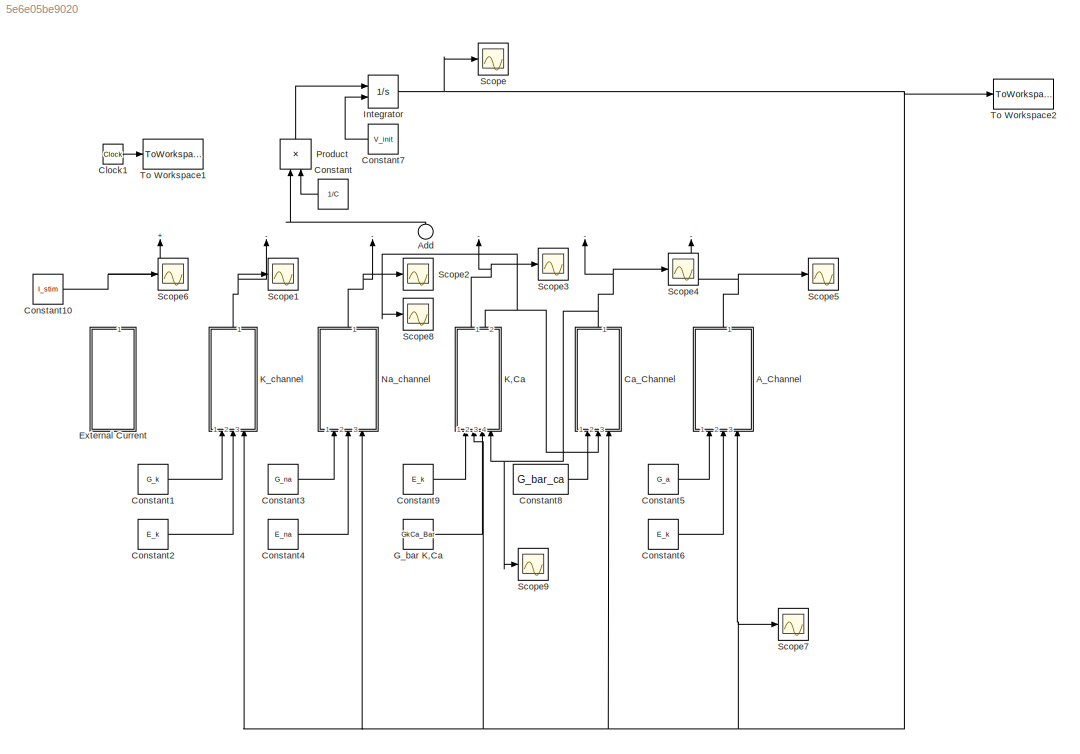
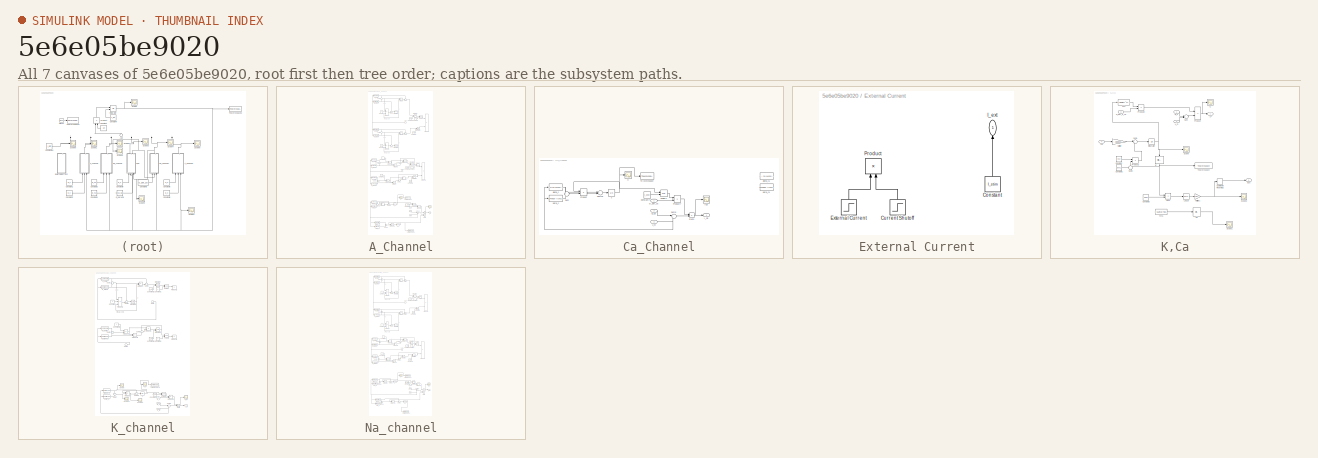
[diagram: thumbnail index - all 7 canvases of the model, root first then tree order]
MODEL slx_5e6e05be9020
KIND model
CONFIG AbsTol = auto
CONFIG EnableMultiTasking = off
CONFIG FixedStep = auto
CONFIG MaxStep = auto
CONFIG MinStep = auto
CONFIG RelTol = 1e-3
CONFIG SampleTimeConstraint = Unconstrained
CONFIG Solver = VariableStepAuto
CONFIG SolverName = VariableStepAuto
CONFIG StartTime = 0.0
CONFIG StopTime = 1000
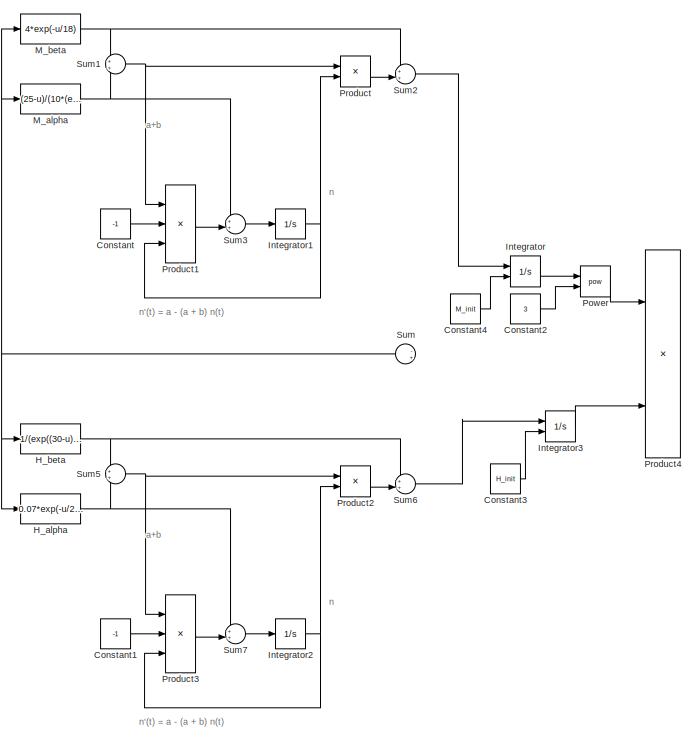
[diagram: A_Channel - part 1/2, full width, top band]
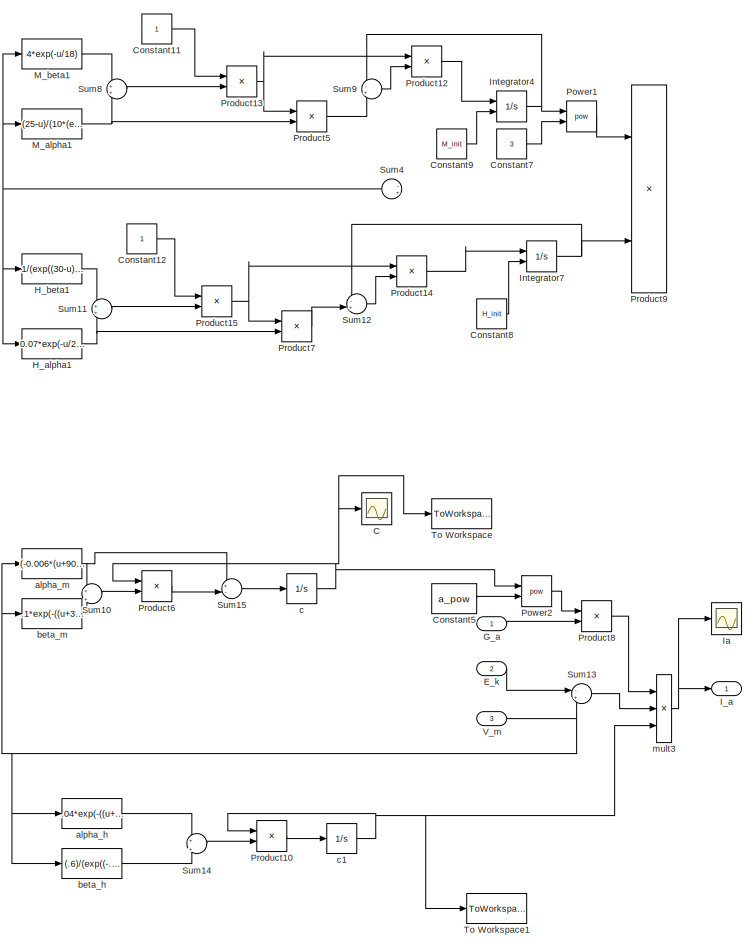
[diagram: A_Channel - part 2/2, full width, bottom band]
BLOCK [SubSystem] A_Channel
  Ports = [3, 1]
  RequestExecContextInheritance = off
BLOCK [Scope] A_Channel/C
  Floating = off
  NumInputPorts = 1
  Ports = [1]
  ScopeSpecificationString = Simulink.scopes.TimeScopeBlockCfg('CurrentConfiguration', extmgr.ConfigurationSet(extmgr.Configuration('Core','General UI',true),extmgr.Configuration('Core','Source UI',true),extmgr.Configuration('Sources','WiredSimulink',true),extmgr.Configuration('Visuals','Time Domain',true,'SerializedDisplays',{struct('MinYLimReal','0.23899','MaxYLimReal','1.02607','YLabelReal','','MinYLimMag','0.23899','MaxYL...<+1692ch>
BLOCK [Constant] A_Channel/Constant
  Commented = on
  Value = -1
BLOCK [Constant] A_Channel/Constant1
  Commented = on
  Value = -1
BLOCK [Constant] A_Channel/Constant11
  Commented = on
BLOCK [Constant] A_Channel/Constant12
  Commented = on
BLOCK [Constant] A_Channel/Constant2
  Commented = on
  Value = 3
BLOCK [Constant] A_Channel/Constant3
  Commented = on
  Value = H_init
BLOCK [Constant] A_Channel/Constant4
  Commented = on
  Value = M_init
BLOCK [Constant] A_Channel/Constant5
  Value = a_pow
BLOCK [Constant] A_Channel/Constant7
  Commented = on
  Value = 3
BLOCK [Constant] A_Channel/Constant8
  Commented = on
  Value = H_init
BLOCK [Constant] A_Channel/Constant9
  Commented = on
  Value = M_init
BLOCK [Inport] A_Channel/E_k
  IconDisplay = Port number
  Port = 2
BLOCK [Inport] A_Channel/G_a
  IconDisplay = Port number
BLOCK [Fcn] A_Channel/H_alpha
  Commented = on
  Expr = 0.07*exp(-u/20)
BLOCK [Fcn] A_Channel/H_alpha1
  Commented = on
  Expr = 0.07*exp(-u/20)
BLOCK [Fcn] A_Channel/H_beta
  Commented = on
  Expr = 1/(exp((30-u)/10)+1)
BLOCK [Fcn] A_Channel/H_beta1
  Commented = on
  Expr = 1/(exp((30-u)/10)+1)
BLOCK [Outport] A_Channel/I_a
  IconDisplay = Port number
  VectorParamsAs1DForOutWhenUnconnected = off
BLOCK [Scope] A_Channel/Ia
  Floating = off
  NumInputPorts = 1
  Ports = [1]
  ScopeSpecificationString = Simulink.scopes.TimeScopeBlockCfg('CurrentConfiguration', extmgr.ConfigurationSet(extmgr.Configuration('Core','General UI',true),extmgr.Configuration('Core','Source UI',true),extmgr.Configuration('Sources','WiredSimulink',true,'DataLoggingVariableName','ScopeData7'),extmgr.Configuration('Visuals','Time Domain',true,'SerializedDisplays',{struct('MinYLimReal','-390.10765','MaxYLimReal','3554.97897',...<+1415ch>
BLOCK [Integrator] A_Channel/Integrator
  Commented = on
  InitialConditionSource = external
  Ports = [2, 1]
BLOCK [Integrator] A_Channel/Integrator1
  Commented = on
  Ports = [1, 1]
BLOCK [Integrator] A_Channel/Integrator2
  Commented = on
  Ports = [1, 1]
BLOCK [Integrator] A_Channel/Integrator3
  Commented = on
  InitialConditionSource = external
  Ports = [2, 1]
BLOCK [Integrator] A_Channel/Integrator4
  Commented = on
  InitialConditionSource = external
  Ports = [2, 1]
BLOCK [Integrator] A_Channel/Integrator7
  Commented = on
  InitialConditionSource = external
  Ports = [2, 1]
BLOCK [Fcn] A_Channel/M_alpha
  Commented = on
  Expr = (25-u)/(10*(exp((25-u)/10)-1))
BLOCK [Fcn] A_Channel/M_alpha1
  Commented = on
  Expr = (25-u)/(10*(exp((25-u)/10)-1))
BLOCK [Fcn] A_Channel/M_beta
  Commented = on
  Expr = 4*exp(-u/18)
BLOCK [Fcn] A_Channel/M_beta1
  Commented = on
  Expr = 4*exp(-u/18)
BLOCK [Math] A_Channel/Power
  Commented = on
  Operator = pow
  Ports = [2, 1]
BLOCK [Math] A_Channel/Power1
  Commented = on
  Operator = pow
  Ports = [2, 1]
BLOCK [Math] A_Channel/Power2
  Operator = pow
  Ports = [2, 1]
BLOCK [Product] A_Channel/Product
  Commented = on
  InputSameDT = off
  OutDataTypeStr = Inherit: Inherit via internal rule
  Ports = [2, 1]
  RndMeth = Floor
  SaturateOnIntegerOverflow = off
BLOCK [Product] A_Channel/Product1
  Commented = on
  InputSameDT = off
  Inputs = 3
  OutDataTypeStr = Inherit: Inherit via internal rule
  Ports = [3, 1]
  RndMeth = Floor
  SaturateOnIntegerOverflow = off
BLOCK [Product] A_Channel/Product10
  InputSameDT = off
  OutDataTypeStr = Inherit: Inherit via internal rule
  Ports = [2, 1]
  RndMeth = Floor
  SaturateOnIntegerOverflow = off
BLOCK [Product] A_Channel/Product12
  Commented = on
  InputSameDT = off
  Inputs = /*
  OutDataTypeStr = Inherit: Inherit via internal rule
  Ports = [2, 1]
  RndMeth = Floor
  SaturateOnIntegerOverflow = off
BLOCK [Product] A_Channel/Product13
  Commented = on
  InputSameDT = off
  Inputs = */
  OutDataTypeStr = Inherit: Inherit via internal rule
  Ports = [2, 1]
  RndMeth = Floor
  SaturateOnIntegerOverflow = off
BLOCK [Product] A_Channel/Product14
  Commented = on
  InputSameDT = off
  Inputs = /*
  OutDataTypeStr = Inherit: Inherit via internal rule
  Ports = [2, 1]
  RndMeth = Floor
  SaturateOnIntegerOverflow = off
BLOCK [Product] A_Channel/Product15
  Commented = on
  InputSameDT = off
  Inputs = */
  OutDataTypeStr = Inherit: Inherit via internal rule
  Ports = [2, 1]
  RndMeth = Floor
  SaturateOnIntegerOverflow = off
BLOCK [Product] A_Channel/Product2
  Commented = on
  InputSameDT = off
  OutDataTypeStr = Inherit: Inherit via internal rule
  Ports = [2, 1]
  RndMeth = Floor
  SaturateOnIntegerOverflow = off
BLOCK [Product] A_Channel/Product3
  Commented = on
  InputSameDT = off
  Inputs = 3
  OutDataTypeStr = Inherit: Inherit via internal rule
  Ports = [3, 1]
  RndMeth = Floor
  SaturateOnIntegerOverflow = off
BLOCK [Product] A_Channel/Product4
  Commented = on
  InputSameDT = off
  Inputs = 3
  OutDataTypeStr = Inherit: Inherit via internal rule
  Ports = [3, 1]
  RndMeth = Floor
  SaturateOnIntegerOverflow = off
BLOCK [Product] A_Channel/Product5
  Commented = on
  InputSameDT = off
  OutDataTypeStr = Inherit: Inherit via internal rule
  Ports = [2, 1]
  RndMeth = Floor
  SaturateOnIntegerOverflow = off
BLOCK [Product] A_Channel/Product6
  InputSameDT = off
  OutDataTypeStr = Inherit: Inherit via internal rule
  Ports = [2, 1]
  RndMeth = Floor
  SaturateOnIntegerOverflow = off
BLOCK [Product] A_Channel/Product7
  Commented = on
  InputSameDT = off
  OutDataTypeStr = Inherit: Inherit via internal rule
  Ports = [2, 1]
  RndMeth = Floor
  SaturateOnIntegerOverflow = off
BLOCK [Product] A_Channel/Product8
  InputSameDT = off
  OutDataTypeStr = Inherit: Inherit via internal rule
  Ports = [2, 1]
  RndMeth = Floor
  SaturateOnIntegerOverflow = off
BLOCK [Product] A_Channel/Product9
  Commented = on
  InputSameDT = off
  Inputs = 3
  OutDataTypeStr = Inherit: Inherit via internal rule
  Ports = [3, 1]
  RndMeth = Floor
  SaturateOnIntegerOverflow = off
BLOCK [Sum] A_Channel/Sum
  Commented = on
  IconShape = round
  InputSameDT = off
  Inputs = -+
  OutDataTypeStr = Inherit: Inherit via internal rule
  Ports = [2, 1]
  SaturateOnIntegerOverflow = off
BLOCK [Sum] A_Channel/Sum1
  Commented = on
  IconShape = round
  InputSameDT = off
  OutDataTypeStr = Inherit: Inherit via internal rule
  Ports = [2, 1]
  SaturateOnIntegerOverflow = off
BLOCK [Sum] A_Channel/Sum10
  IconShape = round
  InputSameDT = off
  Inputs = +|+
  OutDataTypeStr = Inherit: Inherit via internal rule
  Ports = [2, 1]
  SaturateOnIntegerOverflow = off
BLOCK [Sum] A_Channel/Sum11
  Commented = on
  IconShape = round
  InputSameDT = off
  OutDataTypeStr = Inherit: Inherit via internal rule
  Ports = [2, 1]
  SaturateOnIntegerOverflow = off
BLOCK [Sum] A_Channel/Sum12
  Commented = on
  IconShape = round
  InputSameDT = off
  Inputs = -+
  OutDataTypeStr = Inherit: Inherit via internal rule
  Ports = [2, 1]
  SaturateOnIntegerOverflow = off
BLOCK [Sum] A_Channel/Sum13
  IconShape = round
  InputSameDT = off
  Inputs = -+
  OutDataTypeStr = Inherit: Inherit via internal rule
  Ports = [2, 1]
  SaturateOnIntegerOverflow = off
BLOCK [Sum] A_Channel/Sum14
  IconShape = round
  InputSameDT = off
  Inputs = +|+
  OutDataTypeStr = Inherit: Inherit via internal rule
  Ports = [2, 1]
  SaturateOnIntegerOverflow = off
BLOCK [Sum] A_Channel/Sum15
  IconShape = round
  InputSameDT = off
  Inputs = +-|
  OutDataTypeStr = Inherit: Inherit via internal rule
  Ports = [2, 1]
  SaturateOnIntegerOverflow = off
BLOCK [Sum] A_Channel/Sum2
  Commented = on
  IconShape = round
  InputSameDT = off
  Inputs = ++|
  OutDataTypeStr = Inherit: Inherit via internal rule
  Ports = [2, 1]
  SaturateOnIntegerOverflow = off
BLOCK [Sum] A_Channel/Sum3
  Commented = on
  IconShape = round
  InputSameDT = off
  Inputs = ++|
  OutDataTypeStr = Inherit: Inherit via internal rule
  Ports = [2, 1]
  SaturateOnIntegerOverflow = off
BLOCK [Sum] A_Channel/Sum4
  Commented = on
  IconShape = round
  InputSameDT = off
  Inputs = -+
  OutDataTypeStr = Inherit: Inherit via internal rule
  Ports = [2, 1]
  SaturateOnIntegerOverflow = off
BLOCK [Sum] A_Channel/Sum5
  Commented = on
  IconShape = round
  InputSameDT = off
  OutDataTypeStr = Inherit: Inherit via internal rule
  Ports = [2, 1]
  SaturateOnIntegerOverflow = off
BLOCK [Sum] A_Channel/Sum6
  Commented = on
  IconShape = round
  InputSameDT = off
  Inputs = ++|
  OutDataTypeStr = Inherit: Inherit via internal rule
  Ports = [2, 1]
  SaturateOnIntegerOverflow = off
BLOCK [Sum] A_Channel/Sum7
  Commented = on
  IconShape = round
  InputSameDT = off
  Inputs = ++|
  OutDataTypeStr = Inherit: Inherit via internal rule
  Ports = [2, 1]
  SaturateOnIntegerOverflow = off
BLOCK [Sum] A_Channel/Sum8
  Commented = on
  IconShape = round
  InputSameDT = off
  OutDataTypeStr = Inherit: Inherit via internal rule
  Ports = [2, 1]
  SaturateOnIntegerOverflow = off
BLOCK [Sum] A_Channel/Sum9
  Commented = on
  IconShape = round
  InputSameDT = off
  Inputs = -+
  OutDataTypeStr = Inherit: Inherit via internal rule
  Ports = [2, 1]
  SaturateOnIntegerOverflow = off
BLOCK [ToWorkspace] A_Channel/To Workspace
  FixptAsFi = on
  MaxDataPoints = inf
  Ports = [1]
  SampleTime = -1
  VariableName = a
BLOCK [ToWorkspace] A_Channel/To Workspace1
  FixptAsFi = on
  MaxDataPoints = inf
  Ports = [1]
  SampleTime = -1
  VariableName = ah
BLOCK [Inport] A_Channel/V_m
  IconDisplay = Port number
  Port = 3
BLOCK [Fcn] A_Channel/alpha_h
  Expr = .04*exp(-((u+70)/20))
BLOCK [Fcn] A_Channel/alpha_m
  Expr = (-0.006*(u+90))/(exp(-.1*(u+90))-1)
BLOCK [Fcn] A_Channel/beta_h
  Expr = (.6)/(exp((-.1)*(u+40))+1)
BLOCK [Fcn] A_Channel/beta_m
  Expr = .1*exp(-((u+30)/10))
BLOCK [Integrator] A_Channel/c
  Ports = [1, 1]
BLOCK [Integrator] A_Channel/c1
  Ports = [1, 1]
BLOCK [Product] A_Channel/mult3
  InputSameDT = off
  Inputs = ***
  OutDataTypeStr = Inherit: Inherit via internal rule
  Ports = [3, 1]
  RndMeth = Floor
  SaturateOnIntegerOverflow = off
BLOCK [Sum] Add
  InputSameDT = off
  Inputs = +-----
  OutDataTypeStr = Inherit: Inherit via internal rule
  Ports = [6, 1]
  SaturateOnIntegerOverflow = off
BLOCK [SubSystem] Ca_Channel
  Ports = [3, 1]
  RequestExecContextInheritance = off
BLOCK [Scope] Ca_Channel/C
  Floating = off
  NumInputPorts = 1
  Ports = [1]
  ScopeSpecificationString = Simulink.scopes.TimeScopeBlockCfg('CurrentConfiguration', extmgr.ConfigurationSet(extmgr.Configuration('Core','General UI',true),extmgr.Configuration('Core','Source UI',true),extmgr.Configuration('Sources','WiredSimulink',true,'DataLoggingVariableName','ScopeData6'),extmgr.Configuration('Visuals','Time Domain',true,'SerializedDisplays',{struct('MinYLimReal','-0.11544','MaxYLimReal','1.03892','YLab...<+1695ch>
BLOCK [Constant] Ca_Channel/Constant7
  Value = c_pow
BLOCK [Inport] Ca_Channel/E_Ca
  IconDisplay = Port number
  Port = 2
BLOCK [Inport] Ca_Channel/G_bar_ca
  IconDisplay = Port number
BLOCK [Scope] Ca_Channel/ICa
  Floating = off
  NumInputPorts = 1
  Ports = [1]
  ScopeSpecificationString = Simulink.scopes.TimeScopeBlockCfg('CurrentConfiguration', extmgr.ConfigurationSet(extmgr.Configuration('Core','General UI',true),extmgr.Configuration('Core','Source UI',true),extmgr.Configuration('Sources','WiredSimulink',true,'DataLoggingVariableName','ScopeData5'),extmgr.Configuration('Visuals','Time Domain',true,'SerializedDisplays',{struct('MinYLimReal','-390.10765','MaxYLimReal','3554.97897',...<+1415ch>
BLOCK [Outport] Ca_Channel/I_Ca
  IconDisplay = Port number
  VectorParamsAs1DForOutWhenUnconnected = off
BLOCK [Math] Ca_Channel/Power2
  Operator = pow
  Ports = [2, 1]
BLOCK [Product] Ca_Channel/Product
  InputSameDT = off
  OutDataTypeStr = Inherit: Inherit via internal rule
  Ports = [2, 1]
  RndMeth = Floor
  SaturateOnIntegerOverflow = off
BLOCK [Product] Ca_Channel/Product7
  InputSameDT = off
  OutDataTypeStr = Inherit: Inherit via internal rule
  Ports = [2, 1]
  RndMeth = Floor
  SaturateOnIntegerOverflow = off
BLOCK [Sum] Ca_Channel/Sum
  IconShape = round
  InputSameDT = off
  Inputs = +|+
  OutDataTypeStr = Inherit: Inherit via internal rule
  Ports = [2, 1]
  SaturateOnIntegerOverflow = off
BLOCK [Sum] Ca_Channel/Sum15
  IconShape = round
  InputSameDT = off
  Inputs = +-|
  OutDataTypeStr = Inherit: Inherit via internal rule
  Ports = [2, 1]
  SaturateOnIntegerOverflow = off
BLOCK [Sum] Ca_Channel/Sum9
  IconShape = round
  InputSameDT = off
  Inputs = -+
  OutDataTypeStr = Inherit: Inherit via internal rule
  Ports = [2, 1]
  SaturateOnIntegerOverflow = off
BLOCK [ToWorkspace] Ca_Channel/To Workspace
  FixptAsFi = on
  MaxDataPoints = inf
  Ports = [1]
  SampleTime = -1
  VariableName = C
BLOCK [Inport] Ca_Channel/V_m
  IconDisplay = Port number
  Port = 3
BLOCK [Fcn] Ca_Channel/alpha_c
  Expr = (-0.3*(u+13))/(exp(-.1*(u+13))-1)
BLOCK [Fcn] Ca_Channel/alpha_c1
  Commented = through
  Expr = ((-.3)(u+13))/(exp((-.1)(u+13))+1)
BLOCK [Fcn] Ca_Channel/beta_c
  Expr = 10*exp(-((u+38)/18))
BLOCK [Fcn] Ca_Channel/beta_c1
  Commented = through
  Expr = 10*exp(-((u+38)/18))
BLOCK [Integrator] Ca_Channel/c
  Ports = [1, 1]
BLOCK [Product] Ca_Channel/mult3
  InputSameDT = off
  Inputs = **
  OutDataTypeStr = Inherit: Inherit via internal rule
  Ports = [2, 1]
  RndMeth = Floor
  SaturateOnIntegerOverflow = off
BLOCK [Clock] Clock1
BLOCK [Constant] Constant
  Value = 1/C
BLOCK [Constant] Constant1
  Value = G_k
BLOCK [Constant] Constant10
  Value = I_stim
BLOCK [Constant] Constant2
  Value = E_k
BLOCK [Constant] Constant3
  Value = G_na
BLOCK [Constant] Constant4
  Value = E_na
BLOCK [Constant] Constant5
  Value = G_a
BLOCK [Constant] Constant6
  Value = E_k
BLOCK [Constant] Constant7
  Value = V_init
BLOCK [Constant] Constant8
  Value = G_bar_ca
BLOCK [Constant] Constant9
  Value = E_k
BLOCK [SubSystem] External Current
  Ports = [0, 1]
  RequestExecContextInheritance = off
BLOCK [Constant] External Current/Constant
  Value = I_stim
BLOCK [Step] External Current/Current Shutoff
  After = 0
  Before = 1
  Commented = on
  SampleTime = 0
  Time = T_stim_stop
BLOCK [Step] External Current/External Current
  After = I_stim
  Commented = on
  SampleTime = 0
  Time = T_stim_start
BLOCK [Outport] External Current/I_ext
  IconDisplay = Port number
  VectorParamsAs1DForOutWhenUnconnected = off
BLOCK [Product] External Current/Product
  Commented = on
  InputSameDT = off
  OutDataTypeStr = Inherit: Inherit via internal rule
  Ports = [2, 1]
  RndMeth = Floor
  SaturateOnIntegerOverflow = off
BLOCK [Constant] G_bar K,Ca
  Value = GkCa_Bar
BLOCK [Integrator] Integrator
  InitialConditionSource = external
  Ports = [2, 1]
BLOCK [SubSystem] K,Ca
  Ports = [4, 2]
  RequestExecContextInheritance = off
BLOCK [ComplexToRealImag] K,Ca/Complex to Real-Imag
  Ports = [1, 2]
BLOCK [Constant] K,Ca/Constant
  Value = 0.02
BLOCK [Constant] K,Ca/Constant1
  Value = -.0001
BLOCK [Constant] K,Ca/Constant2
  Value = Cdiss
BLOCK [Product] K,Ca/Divide
  InputSameDT = off
  Inputs = */
  OutDataTypeStr = Inherit: Inherit via internal rule
  Ports = [2, 1]
  RndMeth = Floor
  SaturateOnIntegerOverflow = off
BLOCK [Inport] K,Ca/E_K
  IconDisplay = Port number
BLOCK [Outport] K,Ca/Eca
  IconDisplay = Port number
  Port = 2
BLOCK [Fcn] K,Ca/Fcn
  Expr = ((u/Cdiss)^2)/(1 + ((u/Cdiss)^2))
BLOCK [Fcn] K,Ca/Fcn1
  Commented = on
  Expr = (-61/Zca)*log(u/Cdiss)
BLOCK [Inport] K,Ca/G_bar_k_ca
  IconDisplay = Port number
  Port = 3
BLOCK [InitialCondition] K,Ca/IC
  Value = 10E-7
BLOCK [InitialCondition] K,Ca/IC1
  Commented = on
BLOCK [Scope] K,Ca/IL
  Floating = off
  NumInputPorts = 1
  Ports = [1]
  ScopeSpecificationString = Simulink.scopes.TimeScopeBlockCfg('CurrentConfiguration', extmgr.ConfigurationSet(extmgr.Configuration('Core','General UI',true),extmgr.Configuration('Core','Source UI',true),extmgr.Configuration('Sources','WiredSimulink',true,'DataLoggingVariableName','ScopeData2'),extmgr.Configuration('Visuals','Time Domain',true,'SerializedDisplays',{struct('MinYLimReal','-0.51864','MaxYLimReal','4.66778','YLab...<+1399ch>
BLOCK [Outport] K,Ca/I_L
  IconDisplay = Port number
  VectorParamsAs1DForOutWhenUnconnected = off
BLOCK [Inport] K,Ca/Ica
  IconDisplay = Port number
  Port = 4
BLOCK [Integrator] K,Ca/Integrator
  Ports = [1, 1]
BLOCK [Math] K,Ca/Log10
  Operator = log10
  Ports = [1, 1]
  SignedPower = off
BLOCK [Gain] K,Ca/Multiply
  Gain = -.000015
  OutDataTypeStr = Inherit: Inherit via internal rule
  ParamDataTypeStr = Inherit: Inherit via internal rule
  SaturateOnIntegerOverflow = off
BLOCK [Gain] K,Ca/Multiply1
  Gain = (-61/Zca)
  OutDataTypeStr = Inherit: Inherit via internal rule
  ParamDataTypeStr = Inherit: Inherit via internal rule
  SaturateOnIntegerOverflow = off
BLOCK [Product] K,Ca/Product
  InputSameDT = off
  OutDataTypeStr = Inherit: Inherit via internal rule
  Ports = [2, 1]
  RndMeth = Floor
  SaturateOnIntegerOverflow = off
BLOCK [Product] K,Ca/Product1
  InputSameDT = off
  OutDataTypeStr = Inherit: Inherit via internal rule
  Ports = [2, 1]
  RndMeth = Floor
  SaturateOnIntegerOverflow = off
BLOCK [Product] K,Ca/Product2
  InputSameDT = off
  OutDataTypeStr = Inherit: Inherit via internal rule
  Ports = [2, 1]
  RndMeth = Floor
  SaturateOnIntegerOverflow = off
BLOCK [Scope] K,Ca/Scope
  Floating = off
  NumInputPorts = 1
  Ports = [1]
  ScopeSpecificationString = Simulink.scopes.TimeScopeBlockCfg('CurrentConfiguration', extmgr.ConfigurationSet(extmgr.Configuration('Core','General UI',true),extmgr.Configuration('Core','Source UI',true),extmgr.Configuration('Sources','WiredSimulink',true,'DataLoggingVariableName','ScopeData8'),extmgr.Configuration('Visuals','Time Domain',true,'SerializedDisplays',{struct('MinYLimReal','-0.00584','MaxYLimReal','0.00066','YLab...<+1388ch>
BLOCK [Scope] K,Ca/Scope1
  Commented = on
  Floating = off
  NumInputPorts = 1
  Ports = [1]
  ScopeSpecificationString = Simulink.scopes.TimeScopeBlockCfg('CurrentConfiguration', extmgr.ConfigurationSet(extmgr.Configuration('Core','General UI',true),extmgr.Configuration('Core','Source UI',true),extmgr.Configuration('Sources','WiredSimulink',true,'DataLoggingVariableName','ScopeData9'),extmgr.Configuration('Visuals','Time Domain',true,'SerializedDisplays',{struct('MinYLimReal','0.9','MaxYLimReal','1.1','YLabelReal','...<+1328ch>
BLOCK [Scope] K,Ca/Scope2
  Floating = off
  NumInputPorts = 1
  Ports = [1]
  ScopeSpecificationString = Simulink.scopes.TimeScopeBlockCfg('CurrentConfiguration', extmgr.ConfigurationSet(extmgr.Configuration('Core','General UI',true),extmgr.Configuration('Core','Source UI',true),extmgr.Configuration('Sources','WiredSimulink',true,'DataLoggingVariableName','ScopeData10'),extmgr.Configuration('Visuals','Time Domain',true,'SerializedDisplays',{struct('MinYLimReal','-43.46141','MaxYLimReal','150.81932','...<+1664ch>
BLOCK [Sum] K,Ca/Sum
  IconShape = round
  InputSameDT = off
  Inputs = -+
  OutDataTypeStr = Inherit: Inherit via internal rule
  Ports = [2, 1]
  SaturateOnIntegerOverflow = off
BLOCK [Sum] K,Ca/Sum1
  IconShape = round
  InputSameDT = off
  Inputs = |+-
  OutDataTypeStr = Inherit: Inherit via internal rule
  Ports = [2, 1]
  SaturateOnIntegerOverflow = off
BLOCK [Sum] K,Ca/Sum2
  IconShape = round
  InputSameDT = off
  OutDataTypeStr = Inherit: Inherit via internal rule
  Ports = [2, 1]
  SaturateOnIntegerOverflow = off
BLOCK [ToWorkspace] K,Ca/To Workspace
  FixptAsFi = on
  MaxDataPoints = inf
  Ports = [1]
  SampleTime = -1
  VariableName = CAi
BLOCK [Inport] K,Ca/V_m
  IconDisplay = Port number
  Port = 2
BLOCK [SubSystem] K_channel
  Ports = [3, 1]
  RequestExecContextInheritance = off
BLOCK [Scope] K_channel/C
  Floating = off
  NumInputPorts = 1
  Ports = [1]
  ScopeSpecificationString = Simulink.scopes.TimeScopeBlockCfg('CurrentConfiguration', extmgr.ConfigurationSet(extmgr.Configuration('Core','General UI',true),extmgr.Configuration('Core','Source UI',true),extmgr.Configuration('Sources','WiredSimulink',true,'DataLoggingVariableName','ScopeData3'),extmgr.Configuration('Visuals','Time Domain',true,'SerializedDisplays',{struct('MinYLimReal','-0.07554','MaxYLimReal','0.67988','YLab...<+1695ch>
BLOCK [Constant] K_channel/Constant
  Commented = on
  Value = -1
BLOCK [Constant] K_channel/Constant1
  Commented = on
  Value = 4
BLOCK [Constant] K_channel/Constant2
  Commented = on
  Value = N_init
BLOCK [Constant] K_channel/Constant3
  Commented = on
BLOCK [Constant] K_channel/Constant4
  Commented = on
  Value = 4
BLOCK [Constant] K_channel/Constant5
  Commented = on
  Value = N_init
BLOCK [Constant] K_channel/Constant7
  Value = n_pow
BLOCK [Inport] K_channel/E_k
  IconDisplay = Port number
  Port = 2
BLOCK [Inport] K_channel/G_k
  IconDisplay = Port number
BLOCK [Outport] K_channel/I_k
  IconDisplay = Port number
  VectorParamsAs1DForOutWhenUnconnected = off
BLOCK [Scope] K_channel/Ik
  Floating = off
  NumInputPorts = 1
  Ports = [1]
  ScopeSpecificationString = Simulink.scopes.TimeScopeBlockCfg('CurrentConfiguration', extmgr.ConfigurationSet(extmgr.Configuration('Core','General UI',true),extmgr.Configuration('Core','Source UI',true),extmgr.Configuration('Sources','WiredSimulink',true,'DataLoggingVariableName','ScopeData4'),extmgr.Configuration('Visuals','Time Domain',true,'SerializedDisplays',{struct('MinYLimReal','-390.10765','MaxYLimReal','3554.97897',...<+1415ch>
BLOCK [Integrator] K_channel/Integrator
  Commented = on
  InitialConditionSource = external
  Ports = [2, 1]
BLOCK [Integrator] K_channel/Integrator1
  Commented = on
  Ports = [1, 1]
BLOCK [Integrator] K_channel/Integrator2
  Commented = on
  InitialConditionSource = external
  Ports = [2, 1]
BLOCK [Integrator] K_channel/N
  Ports = [1, 1]
BLOCK [Fcn] K_channel/N_alpha
  Commented = on
  Expr = (10-u)/(100*(exp((10-u)/10)-1))
BLOCK [Fcn] K_channel/N_alpha1
  Commented = on
  Expr = (10-u)/(100*(exp((10-u)/10)-1))
BLOCK [Fcn] K_channel/N_beta
  Commented = on
  Expr = 0.125*exp(-u/80)
BLOCK [Fcn] K_channel/N_beta1
  Commented = on
  Expr = 0.125*exp(-u/80)
BLOCK [Math] K_channel/Power
  Commented = on
  Operator = pow
  Ports = [2, 1]
BLOCK [Math] K_channel/Power1
  Commented = on
  Operator = pow
  Ports = [2, 1]
BLOCK [Math] K_channel/Power2
  Operator = pow
  Ports = [2, 1]
BLOCK [Product] K_channel/Product
  Commented = on
  InputSameDT = off
  OutDataTypeStr = Inherit: Inherit via internal rule
  Ports = [2, 1]
  RndMeth = Floor
  SaturateOnIntegerOverflow = off
BLOCK [Product] K_channel/Product1
  Commented = on
  InputSameDT = off
  Inputs = 3
  OutDataTypeStr = Inherit: Inherit via internal rule
  Ports = [3, 1]
  RndMeth = Floor
  SaturateOnIntegerOverflow = off
BLOCK [Product] K_channel/Product2
  Commented = on
  InputSameDT = off
  OutDataTypeStr = Inherit: Inherit via internal rule
  Ports = [2, 1]
  RndMeth = Floor
  SaturateOnIntegerOverflow = off
BLOCK [Product] K_channel/Product3
  Commented = on
  InputSameDT = off
  Inputs = /*
  OutDataTypeStr = Inherit: Inherit via internal rule
  Ports = [2, 1]
  RndMeth = Floor
  SaturateOnIntegerOverflow = off
BLOCK [Product] K_channel/Product4
  Commented = on
  InputSameDT = off
  Inputs = */
  OutDataTypeStr = Inherit: Inherit via internal rule
  Ports = [2, 1]
  RndMeth = Floor
  SaturateOnIntegerOverflow = off
BLOCK [Product] K_channel/Product5
  Commented = on
  InputSameDT = off
  OutDataTypeStr = Inherit: Inherit via internal rule
  Ports = [2, 1]
  RndMeth = Floor
  SaturateOnIntegerOverflow = off
BLOCK [Product] K_channel/Product6
  Commented = on
  InputSameDT = off
  OutDataTypeStr = Inherit: Inherit via internal rule
  Ports = [2, 1]
  RndMeth = Floor
  SaturateOnIntegerOverflow = off
BLOCK [Product] K_channel/Product7
  InputSameDT = off
  OutDataTypeStr = Inherit: Inherit via internal rule
  Ports = [2, 1]
  RndMeth = Floor
  SaturateOnIntegerOverflow = off
BLOCK [Product] K_channel/Product8
  InputSameDT = off
  OutDataTypeStr = Inherit: Inherit via internal rule
  Ports = [2, 1]
  RndMeth = Floor
  SaturateOnIntegerOverflow = off
BLOCK [Scope] K_channel/Scope
  Floating = off
  NumInputPorts = 1
  Ports = [1]
  ScopeSpecificationString = Simulink.scopes.TimeScopeBlockCfg('CurrentConfiguration', extmgr.ConfigurationSet(extmgr.Configuration('Core','General UI',true),extmgr.Configuration('Core','Source UI',true),extmgr.Configuration('Sources','WiredSimulink',true,'DataLoggingVariableName','ScopeData16'),extmgr.Configuration('Visuals','Time Domain',true,'SerializedDisplays',{struct('MinYLimReal','-0.08017','MaxYLimReal','1.2698','YLab...<+1396ch>
BLOCK [Scope] K_channel/Scope1
  Floating = off
  NumInputPorts = 1
  Ports = [1]
  ScopeSpecificationString = Simulink.scopes.TimeScopeBlockCfg('CurrentConfiguration', extmgr.ConfigurationSet(extmgr.Configuration('Core','General UI',true),extmgr.Configuration('Core','Source UI',true),extmgr.Configuration('Sources','WiredSimulink',true,'DataLoggingVariableName','ScopeData17'),extmgr.Configuration('Visuals','Time Domain',true,'SerializedDisplays',{struct('MinYLimReal','0.41234','MaxYLimReal','1.40853','YLab...<+1362ch>
BLOCK [Scope] K_channel/Scope2
  Floating = off
  NumInputPorts = 1
  Ports = [1]
  ScopeSpecificationString = Simulink.scopes.TimeScopeBlockCfg('CurrentConfiguration', extmgr.ConfigurationSet(extmgr.Configuration('Core','General UI',true),extmgr.Configuration('Core','Source UI',true),extmgr.Configuration('Sources','WiredSimulink',true,'DataLoggingVariableName','ScopeData18'),extmgr.Configuration('Visuals','Time Domain',true,'SerializedDisplays',{struct('MinYLimReal','-0.08045','MaxYLimReal','0.72406','YLa...<+1667ch>
BLOCK [Sum] K_channel/Sum
  Commented = on
  IconShape = round
  InputSameDT = off
  Inputs = -+
  OutDataTypeStr = Inherit: Inherit via internal rule
  Ports = [2, 1]
  SaturateOnIntegerOverflow = off
BLOCK [Sum] K_channel/Sum1
  Commented = on
  IconShape = round
  InputSameDT = off
  OutDataTypeStr = Inherit: Inherit via internal rule
  Ports = [2, 1]
  SaturateOnIntegerOverflow = off
BLOCK [Sum] K_channel/Sum15
  IconShape = round
  InputSameDT = off
  Inputs = +-|
  OutDataTypeStr = Inherit: Inherit via internal rule
  Ports = [2, 1]
  SaturateOnIntegerOverflow = off
BLOCK [Sum] K_channel/Sum2
  Commented = on
  IconShape = round
  InputSameDT = off
  Inputs = ++|
  OutDataTypeStr = Inherit: Inherit via internal rule
  Ports = [2, 1]
  SaturateOnIntegerOverflow = off
BLOCK [Sum] K_channel/Sum3
  Commented = on
  IconShape = round
  InputSameDT = off
  Inputs = ++|
  OutDataTypeStr = Inherit: Inherit via internal rule
  Ports = [2, 1]
  SaturateOnIntegerOverflow = off
BLOCK [Sum] K_channel/Sum4
  Commented = on
  IconShape = round
  InputSameDT = off
  Inputs = -+
  OutDataTypeStr = Inherit: Inherit via internal rule
  Ports = [2, 1]
  SaturateOnIntegerOverflow = off
BLOCK [Sum] K_channel/Sum5
  Commented = on
  IconShape = round
  InputSameDT = off
  OutDataTypeStr = Inherit: Inherit via internal rule
  Ports = [2, 1]
  SaturateOnIntegerOverflow = off
BLOCK [Sum] K_channel/Sum6
  Commented = on
  IconShape = round
  InputSameDT = off
  Inputs = -+
  OutDataTypeStr = Inherit: Inherit via internal rule
  Ports = [2, 1]
  SaturateOnIntegerOverflow = off
BLOCK [Sum] K_channel/Sum7
  IconShape = round
  InputSameDT = off
  Inputs = +|+
  OutDataTypeStr = Inherit: Inherit via internal rule
  Ports = [2, 1]
  SaturateOnIntegerOverflow = off
BLOCK [Sum] K_channel/Sum9
  IconShape = round
  InputSameDT = off
  Inputs = -+
  OutDataTypeStr = Inherit: Inherit via internal rule
  Ports = [2, 1]
  SaturateOnIntegerOverflow = off
BLOCK [ToWorkspace] K_channel/To Workspace
  FixptAsFi = on
  MaxDataPoints = inf
  Ports = [1]
  SampleTime = -1
  VariableName = N
BLOCK [Inport] K_channel/V_m
  IconDisplay = Port number
  Port = 3
BLOCK [Fcn] K_channel/alpha_N
  Expr = (-0.02*(u+40))/(exp(-.1*(u+40))-1)
BLOCK [Fcn] K_channel/beta_N
  Expr = .4*exp(-(u+50)/80)
BLOCK [Product] K_channel/mult3
  InputSameDT = off
  Inputs = **
  OutDataTypeStr = Inherit: Inherit via internal rule
  Ports = [2, 1]
  RndMeth = Floor
  SaturateOnIntegerOverflow = off
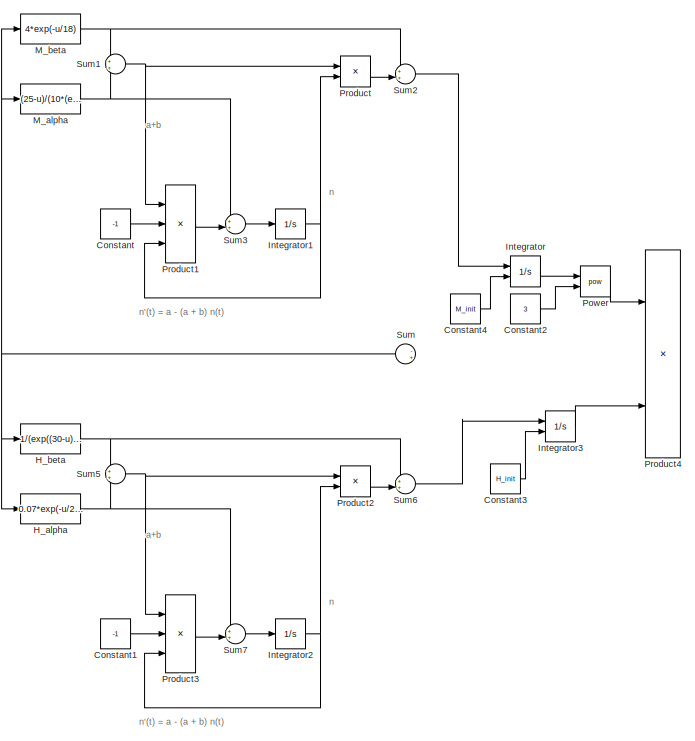
[diagram: Na_channel - part 1/2, full width, top band]
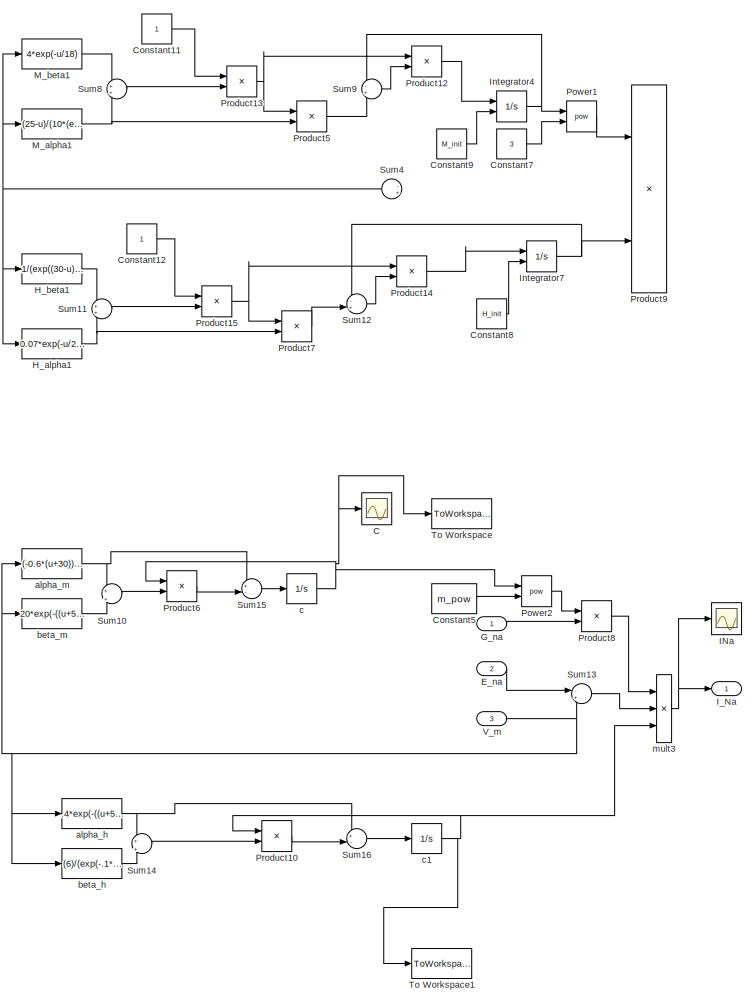
[diagram: Na_channel - part 2/2, full width, bottom band]
BLOCK [SubSystem] Na_channel
  Ports = [3, 1]
  RequestExecContextInheritance = off
BLOCK [Scope] Na_channel/C
  Floating = off
  NumInputPorts = 1
  Ports = [1]
  ScopeSpecificationString = Simulink.scopes.TimeScopeBlockCfg('CurrentConfiguration', extmgr.ConfigurationSet(extmgr.Configuration('Core','General UI',true),extmgr.Configuration('Core','Source UI',true),extmgr.Configuration('Sources','WiredSimulink',true),extmgr.Configuration('Visuals','Time Domain',true,'SerializedDisplays',{struct('MinYLimReal','0.23899','MaxYLimReal','1.02607','YLabelReal','','MinYLimMag','0.23899','MaxYL...<+1692ch>
BLOCK [Constant] Na_channel/Constant
  Commented = on
  Value = -1
BLOCK [Constant] Na_channel/Constant1
  Commented = on
  Value = -1
BLOCK [Constant] Na_channel/Constant11
  Commented = on
BLOCK [Constant] Na_channel/Constant12
  Commented = on
BLOCK [Constant] Na_channel/Constant2
  Commented = on
  Value = 3
BLOCK [Constant] Na_channel/Constant3
  Commented = on
  Value = H_init
BLOCK [Constant] Na_channel/Constant4
  Commented = on
  Value = M_init
BLOCK [Constant] Na_channel/Constant5
  Value = m_pow
BLOCK [Constant] Na_channel/Constant7
  Commented = on
  Value = 3
BLOCK [Constant] Na_channel/Constant8
  Commented = on
  Value = H_init
BLOCK [Constant] Na_channel/Constant9
  Commented = on
  Value = M_init
BLOCK [Inport] Na_channel/E_na
  IconDisplay = Port number
  Port = 2
BLOCK [Inport] Na_channel/G_na
  IconDisplay = Port number
BLOCK [Fcn] Na_channel/H_alpha
  Commented = on
  Expr = 0.07*exp(-u/20)
BLOCK [Fcn] Na_channel/H_alpha1
  Commented = on
  Expr = 0.07*exp(-u/20)
BLOCK [Fcn] Na_channel/H_beta
  Commented = on
  Expr = 1/(exp((30-u)/10)+1)
BLOCK [Fcn] Na_channel/H_beta1
  Commented = on
  Expr = 1/(exp((30-u)/10)+1)
BLOCK [Scope] Na_channel/INa
  Floating = off
  NumInputPorts = 1
  Ports = [1]
  ScopeSpecificationString = Simulink.scopes.TimeScopeBlockCfg('CurrentConfiguration', extmgr.ConfigurationSet(extmgr.Configuration('Core','General UI',true),extmgr.Configuration('Core','Source UI',true),extmgr.Configuration('Sources','WiredSimulink',true,'DataLoggingVariableName','ScopeData7'),extmgr.Configuration('Visuals','Time Domain',true,'SerializedDisplays',{struct('MinYLimReal','-390.10765','MaxYLimReal','3554.97897',...<+1415ch>
BLOCK [Outport] Na_channel/I_Na
  IconDisplay = Port number
  VectorParamsAs1DForOutWhenUnconnected = off
BLOCK [Integrator] Na_channel/Integrator
  Commented = on
  InitialConditionSource = external
  Ports = [2, 1]
BLOCK [Integrator] Na_channel/Integrator1
  Commented = on
  Ports = [1, 1]
BLOCK [Integrator] Na_channel/Integrator2
  Commented = on
  Ports = [1, 1]
BLOCK [Integrator] Na_channel/Integrator3
  Commented = on
  InitialConditionSource = external
  Ports = [2, 1]
BLOCK [Integrator] Na_channel/Integrator4
  Commented = on
  InitialConditionSource = external
  Ports = [2, 1]
BLOCK [Integrator] Na_channel/Integrator7
  Commented = on
  InitialConditionSource = external
  Ports = [2, 1]
BLOCK [Fcn] Na_channel/M_alpha
  Commented = on
  Expr = (25-u)/(10*(exp((25-u)/10)-1))
BLOCK [Fcn] Na_channel/M_alpha1
  Commented = on
  Expr = (25-u)/(10*(exp((25-u)/10)-1))
BLOCK [Fcn] Na_channel/M_beta
  Commented = on
  Expr = 4*exp(-u/18)
BLOCK [Fcn] Na_channel/M_beta1
  Commented = on
  Expr = 4*exp(-u/18)
BLOCK [Math] Na_channel/Power
  Commented = on
  Operator = pow
  Ports = [2, 1]
BLOCK [Math] Na_channel/Power1
  Commented = on
  Operator = pow
  Ports = [2, 1]
BLOCK [Math] Na_channel/Power2
  Operator = pow
  Ports = [2, 1]
BLOCK [Product] Na_channel/Product
  Commented = on
  InputSameDT = off
  OutDataTypeStr = Inherit: Inherit via internal rule
  Ports = [2, 1]
  RndMeth = Floor
  SaturateOnIntegerOverflow = off
BLOCK [Product] Na_channel/Product1
  Commented = on
  InputSameDT = off
  Inputs = 3
  OutDataTypeStr = Inherit: Inherit via internal rule
  Ports = [3, 1]
  RndMeth = Floor
  SaturateOnIntegerOverflow = off
BLOCK [Product] Na_channel/Product10
  InputSameDT = off
  OutDataTypeStr = Inherit: Inherit via internal rule
  Ports = [2, 1]
  RndMeth = Floor
  SaturateOnIntegerOverflow = off
BLOCK [Product] Na_channel/Product12
  Commented = on
  InputSameDT = off
  Inputs = /*
  OutDataTypeStr = Inherit: Inherit via internal rule
  Ports = [2, 1]
  RndMeth = Floor
  SaturateOnIntegerOverflow = off
BLOCK [Product] Na_channel/Product13
  Commented = on
  InputSameDT = off
  Inputs = */
  OutDataTypeStr = Inherit: Inherit via internal rule
  Ports = [2, 1]
  RndMeth = Floor
  SaturateOnIntegerOverflow = off
BLOCK [Product] Na_channel/Product14
  Commented = on
  InputSameDT = off
  Inputs = /*
  OutDataTypeStr = Inherit: Inherit via internal rule
  Ports = [2, 1]
  RndMeth = Floor
  SaturateOnIntegerOverflow = off
BLOCK [Product] Na_channel/Product15
  Commented = on
  InputSameDT = off
  Inputs = */
  OutDataTypeStr = Inherit: Inherit via internal rule
  Ports = [2, 1]
  RndMeth = Floor
  SaturateOnIntegerOverflow = off
BLOCK [Product] Na_channel/Product2
  Commented = on
  InputSameDT = off
  OutDataTypeStr = Inherit: Inherit via internal rule
  Ports = [2, 1]
  RndMeth = Floor
  SaturateOnIntegerOverflow = off
BLOCK [Product] Na_channel/Product3
  Commented = on
  InputSameDT = off
  Inputs = 3
  OutDataTypeStr = Inherit: Inherit via internal rule
  Ports = [3, 1]
  RndMeth = Floor
  SaturateOnIntegerOverflow = off
BLOCK [Product] Na_channel/Product4
  Commented = on
  InputSameDT = off
  Inputs = 3
  OutDataTypeStr = Inherit: Inherit via internal rule
  Ports = [3, 1]
  RndMeth = Floor
  SaturateOnIntegerOverflow = off
BLOCK [Product] Na_channel/Product5
  Commented = on
  InputSameDT = off
  OutDataTypeStr = Inherit: Inherit via internal rule
  Ports = [2, 1]
  RndMeth = Floor
  SaturateOnIntegerOverflow = off
BLOCK [Product] Na_channel/Product6
  InputSameDT = off
  OutDataTypeStr = Inherit: Inherit via internal rule
  Ports = [2, 1]
  RndMeth = Floor
  SaturateOnIntegerOverflow = off
BLOCK [Product] Na_channel/Product7
  Commented = on
  InputSameDT = off
  OutDataTypeStr = Inherit: Inherit via internal rule
  Ports = [2, 1]
  RndMeth = Floor
  SaturateOnIntegerOverflow = off
BLOCK [Product] Na_channel/Product8
  InputSameDT = off
  OutDataTypeStr = Inherit: Inherit via internal rule
  Ports = [2, 1]
  RndMeth = Floor
  SaturateOnIntegerOverflow = off
BLOCK [Product] Na_channel/Product9
  Commented = on
  InputSameDT = off
  Inputs = 3
  OutDataTypeStr = Inherit: Inherit via internal rule
  Ports = [3, 1]
  RndMeth = Floor
  SaturateOnIntegerOverflow = off
BLOCK [Sum] Na_channel/Sum
  Commented = on
  IconShape = round
  InputSameDT = off
  Inputs = -+
  OutDataTypeStr = Inherit: Inherit via internal rule
  Ports = [2, 1]
  SaturateOnIntegerOverflow = off
BLOCK [Sum] Na_channel/Sum1
  Commented = on
  IconShape = round
  InputSameDT = off
  OutDataTypeStr = Inherit: Inherit via internal rule
  Ports = [2, 1]
  SaturateOnIntegerOverflow = off
BLOCK [Sum] Na_channel/Sum10
  IconShape = round
  InputSameDT = off
  Inputs = +|+
  OutDataTypeStr = Inherit: Inherit via internal rule
  Ports = [2, 1]
  SaturateOnIntegerOverflow = off
BLOCK [Sum] Na_channel/Sum11
  Commented = on
  IconShape = round
  InputSameDT = off
  OutDataTypeStr = Inherit: Inherit via internal rule
  Ports = [2, 1]
  SaturateOnIntegerOverflow = off
BLOCK [Sum] Na_channel/Sum12
  Commented = on
  IconShape = round
  InputSameDT = off
  Inputs = -+
  OutDataTypeStr = Inherit: Inherit via internal rule
  Ports = [2, 1]
  SaturateOnIntegerOverflow = off
BLOCK [Sum] Na_channel/Sum13
  IconShape = round
  InputSameDT = off
  Inputs = -+
  OutDataTypeStr = Inherit: Inherit via internal rule
  Ports = [2, 1]
  SaturateOnIntegerOverflow = off
BLOCK [Sum] Na_channel/Sum14
  IconShape = round
  InputSameDT = off
  Inputs = +|+
  OutDataTypeStr = Inherit: Inherit via internal rule
  Ports = [2, 1]
  SaturateOnIntegerOverflow = off
BLOCK [Sum] Na_channel/Sum15
  IconShape = round
  InputSameDT = off
  Inputs = +-|
  OutDataTypeStr = Inherit: Inherit via internal rule
  Ports = [2, 1]
  SaturateOnIntegerOverflow = off
BLOCK [Sum] Na_channel/Sum16
  IconShape = round
  InputSameDT = off
  Inputs = +-|
  OutDataTypeStr = Inherit: Inherit via internal rule
  Ports = [2, 1]
  SaturateOnIntegerOverflow = off
BLOCK [Sum] Na_channel/Sum2
  Commented = on
  IconShape = round
  InputSameDT = off
  Inputs = ++|
  OutDataTypeStr = Inherit: Inherit via internal rule
  Ports = [2, 1]
  SaturateOnIntegerOverflow = off
BLOCK [Sum] Na_channel/Sum3
  Commented = on
  IconShape = round
  InputSameDT = off
  Inputs = ++|
  OutDataTypeStr = Inherit: Inherit via internal rule
  Ports = [2, 1]
  SaturateOnIntegerOverflow = off
BLOCK [Sum] Na_channel/Sum4
  Commented = on
  IconShape = round
  InputSameDT = off
  Inputs = -+
  OutDataTypeStr = Inherit: Inherit via internal rule
  Ports = [2, 1]
  SaturateOnIntegerOverflow = off
BLOCK [Sum] Na_channel/Sum5
  Commented = on
  IconShape = round
  InputSameDT = off
  OutDataTypeStr = Inherit: Inherit via internal rule
  Ports = [2, 1]
  SaturateOnIntegerOverflow = off
BLOCK [Sum] Na_channel/Sum6
  Commented = on
  IconShape = round
  InputSameDT = off
  Inputs = ++|
  OutDataTypeStr = Inherit: Inherit via internal rule
  Ports = [2, 1]
  SaturateOnIntegerOverflow = off
BLOCK [Sum] Na_channel/Sum7
  Commented = on
  IconShape = round
  InputSameDT = off
  Inputs = ++|
  OutDataTypeStr = Inherit: Inherit via internal rule
  Ports = [2, 1]
  SaturateOnIntegerOverflow = off
BLOCK [Sum] Na_channel/Sum8
  Commented = on
  IconShape = round
  InputSameDT = off
  OutDataTypeStr = Inherit: Inherit via internal rule
  Ports = [2, 1]
  SaturateOnIntegerOverflow = off
BLOCK [Sum] Na_channel/Sum9
  Commented = on
  IconShape = round
  InputSameDT = off
  Inputs = -+
  OutDataTypeStr = Inherit: Inherit via internal rule
  Ports = [2, 1]
  SaturateOnIntegerOverflow = off
BLOCK [ToWorkspace] Na_channel/To Workspace
  FixptAsFi = on
  MaxDataPoints = inf
  Ports = [1]
  SampleTime = -1
  VariableName = M
BLOCK [ToWorkspace] Na_channel/To Workspace1
  FixptAsFi = on
  MaxDataPoints = inf
  Ports = [1]
  SampleTime = -1
  VariableName = H
BLOCK [Inport] Na_channel/V_m
  IconDisplay = Port number
  Port = 3
BLOCK [Fcn] Na_channel/alpha_h
  Expr = .4*exp(-((u+50)/20))
BLOCK [Fcn] Na_channel/alpha_m
  Expr = (-0.6*(u+30))/(exp(-.1*(u+30))-1)
BLOCK [Fcn] Na_channel/beta_h
  Expr = (6)/(exp(-.1*(u+20))+1)
BLOCK [Fcn] Na_channel/beta_m
  Expr = 20*exp(-((u+55)/18))
BLOCK [Integrator] Na_channel/c
  Ports = [1, 1]
BLOCK [Integrator] Na_channel/c1
  Ports = [1, 1]
BLOCK [Product] Na_channel/mult3
  InputSameDT = off
  Inputs = ***
  OutDataTypeStr = Inherit: Inherit via internal rule
  Ports = [3, 1]
  RndMeth = Floor
  SaturateOnIntegerOverflow = off
BLOCK [Product] Product
  InputSameDT = off
  OutDataTypeStr = Inherit: Inherit via internal rule
  Ports = [2, 1]
  RndMeth = Floor
  SaturateOnIntegerOverflow = off
BLOCK [Scope] Scope
  Floating = off
  NumInputPorts = 1
  Ports = [1]
  ScopeSpecificationString = Simulink.scopes.TimeScopeBlockCfg('CurrentConfiguration', extmgr.ConfigurationSet(extmgr.Configuration('Core','General UI',true),extmgr.Configuration('Core','Source UI',true),extmgr.Configuration('Sources','WiredSimulink',true,'DataLoggingVariableName','ScopeData1'),extmgr.Configuration('Visuals','Time Domain',true,'SerializedDisplays',{struct('MinYLimReal','-71.81767','MaxYLimReal','26.35902','YL...<+1408ch>
BLOCK [Scope] Scope1
  Floating = off
  NumInputPorts = 1
  Ports = [1]
  ScopeSpecificationString = Simulink.scopes.TimeScopeBlockCfg('CurrentConfiguration', extmgr.ConfigurationSet(extmgr.Configuration('Core','General UI',true),extmgr.Configuration('Core','Source UI',true),extmgr.Configuration('Sources','WiredSimulink',true,'DataLoggingVariableName','ScopeData11'),extmgr.Configuration('Visuals','Time Domain',true,'SerializedDisplays',{struct('MinYLimReal','-12.48892','MaxYLimReal','112.40026','...<+1379ch>
BLOCK [Scope] Scope2
  Floating = off
  NumInputPorts = 1
  Ports = [1]
  ScopeSpecificationString = Simulink.scopes.TimeScopeBlockCfg('CurrentConfiguration', extmgr.ConfigurationSet(extmgr.Configuration('Core','General UI',true),extmgr.Configuration('Core','Source UI',true),extmgr.Configuration('Sources','WiredSimulink',true,'DataLoggingVariableName','ScopeData12'),extmgr.Configuration('Visuals','Time Domain',true,'SerializedDisplays',{struct('MinYLimReal','-227.33925','MaxYLimReal','25.25992','...<+1382ch>
BLOCK [Scope] Scope3
  Floating = off
  NumInputPorts = 1
  Ports = [1]
  ScopeSpecificationString = Simulink.scopes.TimeScopeBlockCfg('CurrentConfiguration', extmgr.ConfigurationSet(extmgr.Configuration('Core','General UI',true),extmgr.Configuration('Core','Source UI',true),extmgr.Configuration('Sources','WiredSimulink',true,'DataLoggingVariableName','ScopeData13'),extmgr.Configuration('Visuals','Time Domain',true,'SerializedDisplays',{struct('MinYLimReal','-0.51864','MaxYLimReal','4.66778','YLa...<+1366ch>
BLOCK [Scope] Scope4
  Floating = off
  NumInputPorts = 1
  Ports = [1]
  ScopeSpecificationString = Simulink.scopes.TimeScopeBlockCfg('CurrentConfiguration', extmgr.ConfigurationSet(extmgr.Configuration('Core','General UI',true),extmgr.Configuration('Core','Source UI',true),extmgr.Configuration('Sources','WiredSimulink',true,'DataLoggingVariableName','ScopeData14'),extmgr.Configuration('Visuals','Time Domain',true,'SerializedDisplays',{struct('MinYLimReal','-7.99722','MaxYLimReal','28.34131','YL...<+1374ch>
BLOCK [Scope] Scope5
  Floating = off
  NumInputPorts = 1
  Ports = [1]
  ScopeSpecificationString = Simulink.scopes.TimeScopeBlockCfg('CurrentConfiguration', extmgr.ConfigurationSet(extmgr.Configuration('Core','General UI',true),extmgr.Configuration('Core','Source UI',true),extmgr.Configuration('Sources','WiredSimulink',true,'DataLoggingVariableName','ScopeData15'),extmgr.Configuration('Visuals','Time Domain',true,'SerializedDisplays',{struct('MinYLimReal','-1.00000','MaxYLimReal','1.00000','YLa...<+1369ch>
BLOCK [Scope] Scope6
  Floating = off
  NumInputPorts = 1
  Ports = [1]
  ScopeSpecificationString = Simulink.scopes.TimeScopeBlockCfg('CurrentConfiguration', extmgr.ConfigurationSet(extmgr.Configuration('Core','General UI',true),extmgr.Configuration('Core','Source UI',true),extmgr.Configuration('Sources','WiredSimulink',true,'DataLoggingVariableName','ScopeData19'),extmgr.Configuration('Visuals','Time Domain',true,'SerializedDisplays',{struct('MinYLimReal','0.9','MaxYLimReal','1.1','YLabelReal',...<+1371ch>
BLOCK [Scope] Scope7
  Floating = off
  NumInputPorts = 1
  Ports = [1]
  ScopeSpecificationString = Simulink.scopes.TimeScopeBlockCfg('CurrentConfiguration', extmgr.ConfigurationSet(extmgr.Configuration('Core','General UI',true),extmgr.Configuration('Core','Source UI',true),extmgr.Configuration('Sources','WiredSimulink',true,'DataLoggingVariableName','ScopeData20'),extmgr.Configuration('Visuals','Time Domain',true,'SerializedDisplays',{struct('MinYLimReal','-71.81767','MaxYLimReal','26.35902','Y...<+1376ch>
BLOCK [Scope] Scope8
  Floating = off
  NumInputPorts = 1
  Ports = [1]
  ScopeSpecificationString = Simulink.scopes.TimeScopeBlockCfg('CurrentConfiguration', extmgr.ConfigurationSet(extmgr.Configuration('Core','General UI',true),extmgr.Configuration('Core','Source UI',true),extmgr.Configuration('Sources','WiredSimulink',true,'DataLoggingVariableName','ScopeData21'),extmgr.Configuration('Visuals','Time Domain',true,'SerializedDisplays',{struct('MinYLimReal','-43.46141','MaxYLimReal','150.81932','...<+1376ch>
BLOCK [Scope] Scope9
  Floating = off
  NumInputPorts = 1
  Ports = [1]
  ScopeSpecificationString = Simulink.scopes.TimeScopeBlockCfg('CurrentConfiguration', extmgr.ConfigurationSet(extmgr.Configuration('Core','General UI',true),extmgr.Configuration('Core','Source UI',true),extmgr.Configuration('Sources','WiredSimulink',true,'DataLoggingVariableName','ScopeData22'),extmgr.Configuration('Visuals','Time Domain',true,'SerializedDisplays',{struct('MinYLimReal','-7.99722','MaxYLimReal','28.34131','YL...<+1374ch>
BLOCK [ToWorkspace] To Workspace1
  FixptAsFi = on
  MaxDataPoints = inf
  Ports = [1]
  SampleTime = -1
  VariableName = Time
BLOCK [ToWorkspace] To Workspace2
  FixptAsFi = on
  MaxDataPoints = inf
  Ports = [1]
  SampleTime = -1
  VariableName = V_m
ANNOTATION A_Channel: a+b
ANNOTATION A_Channel: n
ANNOTATION A_Channel: n'(t) = a - (a + b) n(t)
ANNOTATION K_channel: a+b
ANNOTATION K_channel: n
ANNOTATION K_channel: n'(t) = a - (a + b) n(t)
ANNOTATION Na_channel: a+b
ANNOTATION Na_channel: n
ANNOTATION Na_channel: n'(t) = a - (a + b) n(t)
LINE A_Channel/Constant11:1 -> A_Channel/Product13:1
LINE A_Channel/Constant12:1 -> A_Channel/Product15:1
LINE A_Channel/Constant1:1 -> A_Channel/Product3:2
LINE A_Channel/Constant2:1 -> A_Channel/Power:2
LINE A_Channel/Constant3:1 -> A_Channel/Integrator3:2
LINE A_Channel/Constant4:1 -> A_Channel/Integrator:2
LINE A_Channel/Constant5:1 -> A_Channel/Power2:2
LINE A_Channel/Constant7:1 -> A_Channel/Power1:2
LINE A_Channel/Constant8:1 -> A_Channel/Integrator7:2
LINE A_Channel/Constant9:1 -> A_Channel/Integrator4:2
LINE A_Channel/Constant:1 -> A_Channel/Product1:2
LINE A_Channel/E_k:1 -> A_Channel/Sum13:1
LINE A_Channel/G_a:1 -> A_Channel/Product8:2
NET A_Channel/H_alpha1:1 -> A_Channel/Product7:2, A_Channel/Sum11:2
NET A_Channel/H_alpha:1 -> A_Channel/Sum5:2, A_Channel/Sum7:1
LINE A_Channel/H_beta1:1 -> A_Channel/Sum11:1
NET A_Channel/H_beta:1 -> A_Channel/Sum5:1, A_Channel/Sum6:1
NET A_Channel/Integrator1:1 -> A_Channel/Product1:3, A_Channel/Product:2
NET A_Channel/Integrator2:1 -> A_Channel/Product2:2, A_Channel/Product3:3
LINE A_Channel/Integrator3:1 -> A_Channel/Product4:3
NET A_Channel/Integrator4:1 -> A_Channel/Power1:1, A_Channel/Sum9:1
NET A_Channel/Integrator7:1 -> A_Channel/Product9:3, A_Channel/Sum12:1
LINE A_Channel/Integrator:1 -> A_Channel/Power:1
NET A_Channel/M_alpha1:1 -> A_Channel/Product5:2, A_Channel/Sum8:2
NET A_Channel/M_alpha:1 -> A_Channel/Sum1:2, A_Channel/Sum3:1
LINE A_Channel/M_beta1:1 -> A_Channel/Sum8:1
NET A_Channel/M_beta:1 -> A_Channel/Sum1:1, A_Channel/Sum2:1
LINE A_Channel/Power1:1 -> A_Channel/Product9:1
LINE A_Channel/Power2:1 -> A_Channel/Product8:1
LINE A_Channel/Power:1 -> A_Channel/Product4:1
LINE A_Channel/Product10:1 -> A_Channel/c1:1
LINE A_Channel/Product12:1 -> A_Channel/Integrator4:1
NET A_Channel/Product13:1 -> A_Channel/Product12:1, A_Channel/Product5:1
LINE A_Channel/Product14:1 -> A_Channel/Integrator7:1
NET A_Channel/Product15:1 -> A_Channel/Product14:1, A_Channel/Product7:1
LINE A_Channel/Product1:1 -> A_Channel/Sum3:2
LINE A_Channel/Product2:1 -> A_Channel/Sum6:2
LINE A_Channel/Product3:1 -> A_Channel/Sum7:2
LINE A_Channel/Product5:1 -> A_Channel/Sum9:2
LINE A_Channel/Product6:1 -> A_Channel/Sum15:2
LINE A_Channel/Product7:1 -> A_Channel/Sum12:2
LINE A_Channel/Product8:1 -> A_Channel/mult3:1
LINE A_Channel/Product:1 -> A_Channel/Sum2:2
LINE A_Channel/Sum10:1 -> A_Channel/Product6:2
LINE A_Channel/Sum11:1 -> A_Channel/Product15:2
LINE A_Channel/Sum12:1 -> A_Channel/Product14:2
LINE A_Channel/Sum13:1 -> A_Channel/mult3:2
LINE A_Channel/Sum14:1 -> A_Channel/Product10:2
LINE A_Channel/Sum15:1 -> A_Channel/c:1
NET A_Channel/Sum1:1 -> A_Channel/Product1:1, A_Channel/Product:1
LINE A_Channel/Sum2:1 -> A_Channel/Integrator:1
LINE A_Channel/Sum3:1 -> A_Channel/Integrator1:1
NET A_Channel/Sum4:1 -> A_Channel/H_alpha1:1, A_Channel/H_beta1:1, A_Channel/M_alpha1:1, A_Channel/M_beta1:1
NET A_Channel/Sum5:1 -> A_Channel/Product2:1, A_Channel/Product3:1
LINE A_Channel/Sum6:1 -> A_Channel/Integrator3:1
LINE A_Channel/Sum7:1 -> A_Channel/Integrator2:1
LINE A_Channel/Sum8:1 -> A_Channel/Product13:2
LINE A_Channel/Sum9:1 -> A_Channel/Product12:2
NET A_Channel/Sum:1 -> A_Channel/H_alpha:1, A_Channel/H_beta:1, A_Channel/M_alpha:1, A_Channel/M_beta:1
NET A_Channel/V_m:1 -> A_Channel/Sum13:2, A_Channel/alpha_h:1, A_Channel/alpha_m:1, A_Channel/beta_h:1, A_Channel/beta_m:1
LINE A_Channel/alpha_h:1 -> A_Channel/Sum14:1
NET A_Channel/alpha_m:1 -> A_Channel/Sum10:1, A_Channel/Sum15:1
LINE A_Channel/beta_h:1 -> A_Channel/Sum14:2
LINE A_Channel/beta_m:1 -> A_Channel/Sum10:2
NET A_Channel/c1:1 -> A_Channel/Product10:1, A_Channel/To Workspace1:1, A_Channel/mult3:3
NET A_Channel/c:1 -> A_Channel/C:1, A_Channel/Power2:1, A_Channel/Product6:1, A_Channel/To Workspace:1
NET A_Channel/mult3:1 -> A_Channel/I_a:1, A_Channel/Ia:1
NET A_Channel:1 -> Add:6, Scope5:1
LINE Add:1 -> Product:1
LINE Ca_Channel/Constant7:1 -> Ca_Channel/Power2:2
LINE Ca_Channel/E_Ca:1 -> Ca_Channel/Sum9:1
LINE Ca_Channel/G_bar_ca:1 -> Ca_Channel/Product7:2
LINE Ca_Channel/Power2:1 -> Ca_Channel/Product7:1
LINE Ca_Channel/Product7:1 -> Ca_Channel/mult3:1
LINE Ca_Channel/Product:1 -> Ca_Channel/Sum15:2
LINE Ca_Channel/Sum15:1 -> Ca_Channel/c:1
LINE Ca_Channel/Sum9:1 -> Ca_Channel/mult3:2
LINE Ca_Channel/Sum:1 -> Ca_Channel/Product:2
NET Ca_Channel/V_m:1 -> Ca_Channel/Sum9:2, Ca_Channel/alpha_c:1, Ca_Channel/beta_c:1
NET Ca_Channel/alpha_c:1 -> Ca_Channel/Sum15:1, Ca_Channel/Sum:1
LINE Ca_Channel/beta_c:1 -> Ca_Channel/Sum:2
NET Ca_Channel/c:1 -> Ca_Channel/C:1, Ca_Channel/Power2:1, Ca_Channel/Product:1, Ca_Channel/To Workspace:1
NET Ca_Channel/mult3:1 -> Ca_Channel/ICa:1, Ca_Channel/I_Ca:1
NET Ca_Channel:1 -> Add:5, K,Ca:4, Scope4:1, Scope9:1
LINE Clock1:1 -> To Workspace1:1
NET Constant10:1 -> Add:1, Scope6:1
LINE Constant1:1 -> K_channel:1
LINE Constant2:1 -> K_channel:2
LINE Constant3:1 -> Na_channel:1
LINE Constant4:1 -> Na_channel:2
LINE Constant5:1 -> A_Channel:1
LINE Constant6:1 -> A_Channel:2
LINE Constant7:1 -> Integrator:2
LINE Constant8:1 -> Ca_Channel:1
LINE Constant9:1 -> K,Ca:1
LINE Constant:1 -> Product:2
LINE External Current/Constant:1 -> External Current/I_ext:1
LINE External Current/Current Shutoff:1 -> External Current/Product:2
LINE External Current/External Current:1 -> External Current/Product:1
LINE G_bar K,Ca:1 -> K,Ca:3
NET Integrator:1 -> A_Channel:3, Ca_Channel:3, K,Ca:2, K_channel:3, Na_channel:3, Scope7:1, Scope:1, To Workspace2:1
LINE K,Ca/Complex to Real-Imag:1 -> K,Ca/Eca:1
LINE K,Ca/Constant1:1 -> K,Ca/Sum2:1
LINE K,Ca/Constant2:1 -> K,Ca/Divide:2
LINE K,Ca/Constant:1 -> K,Ca/Product1:1
LINE K,Ca/Divide:1 -> K,Ca/Log10:1
LINE K,Ca/E_K:1 -> K,Ca/Sum:1
LINE K,Ca/Fcn1:1 -> K,Ca/IC1:1
LINE K,Ca/Fcn:1 -> K,Ca/Product2:1
LINE K,Ca/G_bar_k_ca:1 -> K,Ca/Product2:2
LINE K,Ca/IC1:1 -> K,Ca/Scope1:1
NET K,Ca/IC:1 -> K,Ca/Divide:1, K,Ca/Sum2:2, K,Ca/To Workspace:1
LINE K,Ca/Ica:1 -> K,Ca/Multiply:1
NET K,Ca/Integrator:1 -> K,Ca/Fcn:1, K,Ca/IC:1, K,Ca/Scope:1
LINE K,Ca/Log10:1 -> K,Ca/Multiply1:1
NET K,Ca/Multiply1:1 -> K,Ca/Complex to Real-Imag:1, K,Ca/Scope2:1
LINE K,Ca/Multiply:1 -> K,Ca/Sum1:1
LINE K,Ca/Product1:1 -> K,Ca/Sum1:2
LINE K,Ca/Product2:1 -> K,Ca/Product:1
NET K,Ca/Product:1 -> K,Ca/IL:1, K,Ca/I_L:1
LINE K,Ca/Sum1:1 -> K,Ca/Integrator:1
LINE K,Ca/Sum2:1 -> K,Ca/Product1:2
LINE K,Ca/Sum:1 -> K,Ca/Product:2
LINE K,Ca/V_m:1 -> K,Ca/Sum:2
NET K,Ca:1 -> Add:4, Scope3:1
NET K,Ca:2 -> Ca_Channel:2, Scope8:1
LINE K_channel/Constant1:1 -> K_channel/Power:2
LINE K_channel/Constant2:1 -> K_channel/Integrator:2
LINE K_channel/Constant3:1 -> K_channel/Product4:1
LINE K_channel/Constant4:1 -> K_channel/Power1:2
LINE K_channel/Constant5:1 -> K_channel/Integrator2:2
LINE K_channel/Constant7:1 -> K_channel/Power2:2
LINE K_channel/Constant:1 -> K_channel/Product1:2
LINE K_channel/E_k:1 -> K_channel/Sum9:1
LINE K_channel/G_k:1 -> K_channel/Product8:2
NET K_channel/Integrator1:1 -> K_channel/Product1:3, K_channel/Product:2
NET K_channel/Integrator2:1 -> K_channel/Power1:1, K_channel/Sum6:1
LINE K_channel/Integrator:1 -> K_channel/Power:1
NET K_channel/N:1 -> K_channel/C:1, K_channel/Power2:1, K_channel/Product7:1, K_channel/To Workspace:1
NET K_channel/N_alpha1:1 -> K_channel/Product6:2, K_channel/Sum5:2
NET K_channel/N_alpha:1 -> K_channel/Sum1:2, K_channel/Sum3:1
LINE K_channel/N_beta1:1 -> K_channel/Sum5:1
NET K_channel/N_beta:1 -> K_channel/Sum1:1, K_channel/Sum2:1
LINE K_channel/Power1:1 -> K_channel/Product5:1
LINE K_channel/Power2:1 -> K_channel/Product8:1
LINE K_channel/Power:1 -> K_channel/Product2:1
LINE K_channel/Product1:1 -> K_channel/Sum3:2
LINE K_channel/Product3:1 -> K_channel/Integrator2:1
NET K_channel/Product4:1 -> K_channel/Product3:1, K_channel/Product6:1
LINE K_channel/Product6:1 -> K_channel/Sum6:2
NET K_channel/Product7:1 -> K_channel/Scope2:1, K_channel/Sum15:2
LINE K_channel/Product8:1 -> K_channel/mult3:1
LINE K_channel/Product:1 -> K_channel/Sum2:2
LINE K_channel/Sum15:1 -> K_channel/N:1
NET K_channel/Sum1:1 -> K_channel/Product1:1, K_channel/Product:1
LINE K_channel/Sum2:1 -> K_channel/Integrator:1
LINE K_channel/Sum3:1 -> K_channel/Integrator1:1
NET K_channel/Sum4:1 -> K_channel/N_alpha1:1, K_channel/N_beta1:1
LINE K_channel/Sum5:1 -> K_channel/Product4:2
LINE K_channel/Sum6:1 -> K_channel/Product3:2
NET K_channel/Sum7:1 -> K_channel/Product7:2, K_channel/Scope1:1
LINE K_channel/Sum9:1 -> K_channel/mult3:2
NET K_channel/Sum:1 -> K_channel/N_alpha:1, K_channel/N_beta:1
NET K_channel/V_m:1 -> K_channel/Sum9:2, K_channel/alpha_N:1, K_channel/beta_N:1
NET K_channel/alpha_N:1 -> K_channel/Scope:1, K_channel/Sum15:1, K_channel/Sum7:1
LINE K_channel/beta_N:1 -> K_channel/Sum7:2
NET K_channel/mult3:1 -> K_channel/I_k:1, K_channel/Ik:1
NET K_channel:1 -> Add:2, Scope1:1
LINE Na_channel/Constant11:1 -> Na_channel/Product13:1
LINE Na_channel/Constant12:1 -> Na_channel/Product15:1
LINE Na_channel/Constant1:1 -> Na_channel/Product3:2
LINE Na_channel/Constant2:1 -> Na_channel/Power:2
LINE Na_channel/Constant3:1 -> Na_channel/Integrator3:2
LINE Na_channel/Constant4:1 -> Na_channel/Integrator:2
LINE Na_channel/Constant5:1 -> Na_channel/Power2:2
LINE Na_channel/Constant7:1 -> Na_channel/Power1:2
LINE Na_channel/Constant8:1 -> Na_channel/Integrator7:2
LINE Na_channel/Constant9:1 -> Na_channel/Integrator4:2
LINE Na_channel/Constant:1 -> Na_channel/Product1:2
LINE Na_channel/E_na:1 -> Na_channel/Sum13:1
LINE Na_channel/G_na:1 -> Na_channel/Product8:2
NET Na_channel/H_alpha1:1 -> Na_channel/Product7:2, Na_channel/Sum11:2
NET Na_channel/H_alpha:1 -> Na_channel/Sum5:2, Na_channel/Sum7:1
LINE Na_channel/H_beta1:1 -> Na_channel/Sum11:1
NET Na_channel/H_beta:1 -> Na_channel/Sum5:1, Na_channel/Sum6:1
NET Na_channel/Integrator1:1 -> Na_channel/Product1:3, Na_channel/Product:2
NET Na_channel/Integrator2:1 -> Na_channel/Product2:2, Na_channel/Product3:3
LINE Na_channel/Integrator3:1 -> Na_channel/Product4:3
NET Na_channel/Integrator4:1 -> Na_channel/Power1:1, Na_channel/Sum9:1
NET Na_channel/Integrator7:1 -> Na_channel/Product9:3, Na_channel/Sum12:1
LINE Na_channel/Integrator:1 -> Na_channel/Power:1
NET Na_channel/M_alpha1:1 -> Na_channel/Product5:2, Na_channel/Sum8:2
NET Na_channel/M_alpha:1 -> Na_channel/Sum1:2, Na_channel/Sum3:1
LINE Na_channel/M_beta1:1 -> Na_channel/Sum8:1
NET Na_channel/M_beta:1 -> Na_channel/Sum1:1, Na_channel/Sum2:1
LINE Na_channel/Power1:1 -> Na_channel/Product9:1
LINE Na_channel/Power2:1 -> Na_channel/Product8:1
LINE Na_channel/Power:1 -> Na_channel/Product4:1
LINE Na_channel/Product10:1 -> Na_channel/Sum16:2
LINE Na_channel/Product12:1 -> Na_channel/Integrator4:1
NET Na_channel/Product13:1 -> Na_channel/Product12:1, Na_channel/Product5:1
LINE Na_channel/Product14:1 -> Na_channel/Integrator7:1
NET Na_channel/Product15:1 -> Na_channel/Product14:1, Na_channel/Product7:1
LINE Na_channel/Product1:1 -> Na_channel/Sum3:2
LINE Na_channel/Product2:1 -> Na_channel/Sum6:2
LINE Na_channel/Product3:1 -> Na_channel/Sum7:2
LINE Na_channel/Product5:1 -> Na_channel/Sum9:2
LINE Na_channel/Product6:1 -> Na_channel/Sum15:2
LINE Na_channel/Product7:1 -> Na_channel/Sum12:2
LINE Na_channel/Product8:1 -> Na_channel/mult3:1
LINE Na_channel/Product:1 -> Na_channel/Sum2:2
LINE Na_channel/Sum10:1 -> Na_channel/Product6:2
LINE Na_channel/Sum11:1 -> Na_channel/Product15:2
LINE Na_channel/Sum12:1 -> Na_channel/Product14:2
LINE Na_channel/Sum13:1 -> Na_channel/mult3:2
LINE Na_channel/Sum14:1 -> Na_channel/Product10:2
LINE Na_channel/Sum15:1 -> Na_channel/c:1
LINE Na_channel/Sum16:1 -> Na_channel/c1:1
NET Na_channel/Sum1:1 -> Na_channel/Product1:1, Na_channel/Product:1
LINE Na_channel/Sum2:1 -> Na_channel/Integrator:1
LINE Na_channel/Sum3:1 -> Na_channel/Integrator1:1
NET Na_channel/Sum4:1 -> Na_channel/H_alpha1:1, Na_channel/H_beta1:1, Na_channel/M_alpha1:1, Na_channel/M_beta1:1
NET Na_channel/Sum5:1 -> Na_channel/Product2:1, Na_channel/Product3:1
LINE Na_channel/Sum6:1 -> Na_channel/Integrator3:1
LINE Na_channel/Sum7:1 -> Na_channel/Integrator2:1
LINE Na_channel/Sum8:1 -> Na_channel/Product13:2
LINE Na_channel/Sum9:1 -> Na_channel/Product12:2
NET Na_channel/Sum:1 -> Na_channel/H_alpha:1, Na_channel/H_beta:1, Na_channel/M_alpha:1, Na_channel/M_beta:1
NET Na_channel/V_m:1 -> Na_channel/Sum13:2, Na_channel/alpha_h:1, Na_channel/alpha_m:1, Na_channel/beta_h:1, Na_channel/beta_m:1
NET Na_channel/alpha_h:1 -> Na_channel/Sum14:1, Na_channel/Sum16:1
NET Na_channel/alpha_m:1 -> Na_channel/Sum10:1, Na_channel/Sum15:1
LINE Na_channel/beta_h:1 -> Na_channel/Sum14:2
LINE Na_channel/beta_m:1 -> Na_channel/Sum10:2
NET Na_channel/c1:1 -> Na_channel/Product10:1, Na_channel/To Workspace1:1, Na_channel/mult3:3
NET Na_channel/c:1 -> Na_channel/C:1, Na_channel/Power2:1, Na_channel/Product6:1, Na_channel/To Workspace:1
NET Na_channel/mult3:1 -> Na_channel/INa:1, Na_channel/I_Na:1
NET Na_channel:1 -> Add:3, Scope2:1
LINE Product:1 -> Integrator:1
note: NET lines group one-source signal fan-out (src -> all destinations, sorted); 1:1 wires keep LINE
